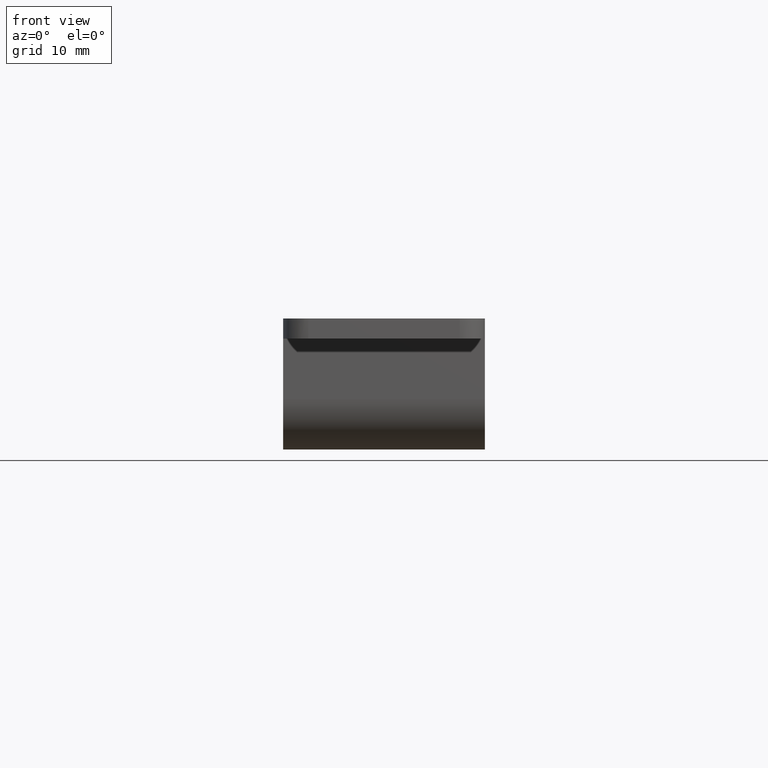
[diagram: clean part render]
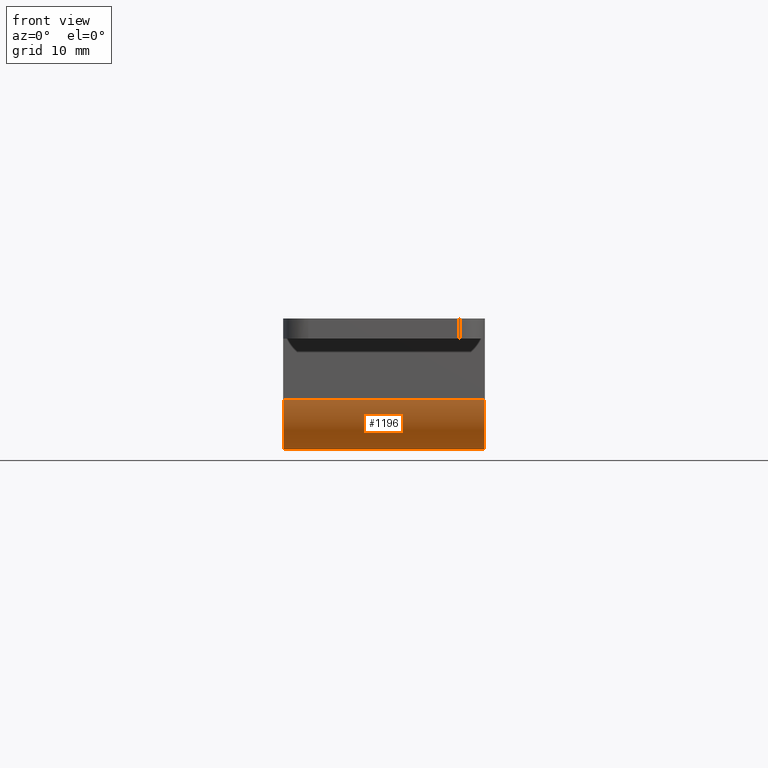
[diagram: same view with one face highlighted and labeled with its STEP entity id]
A machine part, front view. The second image highlights one B-rep face of the part: STEP entity #1196.
In plain terms, the highlighted face is a freeform B-spline surface patch.
Its self-contained STEP definition (entity closure, byte-faithful):
#838=CARTESIAN_POINT('',(9.992319250684650,67.629395641252998,-9.889255623802711));
#839=VERTEX_POINT('',#838);
#884=CARTESIAN_POINT('',(10.0,67.551831564074305,-10.069097765091801));
#885=VERTEX_POINT('',#884);
#891=CARTESIAN_POINT('',(9.992319250684650,67.629395641252998,-9.889255623802711));
#892=CARTESIAN_POINT('',(9.997441706453822,67.604753262195672,-9.949616435159280));
#893=CARTESIAN_POINT('',(10.0,67.578902152860550,-10.009565444472210));
#894=CARTESIAN_POINT('',(10.0,67.551831564074305,-10.069097765091801));
#895=QUASI_UNIFORM_CURVE('',3,(#891,#892,#893,#894),.UNSPECIFIED.,.F.,.U.);
#896=EDGE_CURVE('',#839,#885,#895,.T.);
#915=CARTESIAN_POINT('',(-10.0,67.551831564074305,-10.069097765091801));
#916=VERTEX_POINT('',#915);
#917=CARTESIAN_POINT('',(-9.992319250684780,67.629395641252998,-9.889255623802711));
#918=VERTEX_POINT('',#917);
#919=CARTESIAN_POINT('',(-10.0,67.551831564074305,-10.069097765091801));
#920=CARTESIAN_POINT('',(-10.0,67.578902152860550,-10.009565444472219));
#921=CARTESIAN_POINT('',(-9.997441706453930,67.604753262195672,-9.949616435159291));
#922=CARTESIAN_POINT('',(-9.992319250684759,67.629395641252998,-9.889255623802720));
#923=QUASI_UNIFORM_CURVE('',3,(#919,#920,#921,#922),.UNSPECIFIED.,.F.,.U.);
#924=EDGE_CURVE('',#916,#918,#923,.T.);
#1038=CARTESIAN_POINT('',(-10.0,58.000300000000003,-7.999421360134960));
#1039=VERTEX_POINT('',#1038);
#1040=CARTESIAN_POINT('',(-10.0,67.551831564074320,-10.069097765091810));
#1041=CARTESIAN_POINT('',(-10.0,65.882592664399354,-13.740006667399014));
#1042=CARTESIAN_POINT('',(-10.0,61.941446332199682,-12.886018224025600));
#1043=CARTESIAN_POINT('',(-10.0,58.000300000000003,-12.032029780652177));
#1044=CARTESIAN_POINT('',(-10.0,58.000300000000003,-7.999421360134960));
#1052=(BOUNDED_CURVE()B_SPLINE_CURVE(2,(#1040,#1041,#1042,#1043,#1044),.UNSPECIFIED.,.F.,.U.)B_SPLINE_CURVE_WITH_KNOTS((3,2,3),(0.0,0.500000000000000,1.0),.UNSPECIFIED.)CURVE()GEOMETRIC_REPRESENTATION_ITEM()RATIONAL_B_SPLINE_CURVE((1.0,0.778386386558778,1.0,0.778386386558778,1.0))REPRESENTATION_ITEM(''));
#1053=EDGE_CURVE('',#916,#1039,#1052,.T.);
#1083=CARTESIAN_POINT('',(10.0,58.000300000000003,-7.999421360134960));
#1084=VERTEX_POINT('',#1083);
#1090=CARTESIAN_POINT('',(10.0,67.551831564074320,-10.069097765091810));
#1091=CARTESIAN_POINT('',(10.0,65.882592664399354,-13.740006667399014));
#1092=CARTESIAN_POINT('',(10.0,61.941446332199682,-12.886018224025600));
#1093=CARTESIAN_POINT('',(10.0,58.000300000000003,-12.032029780652177));
#1094=CARTESIAN_POINT('',(10.0,58.000300000000003,-7.999421360134960));
#1102=(BOUNDED_CURVE()B_SPLINE_CURVE(2,(#1090,#1091,#1092,#1093,#1094),.UNSPECIFIED.,.F.,.U.)B_SPLINE_CURVE_WITH_KNOTS((3,2,3),(0.0,0.500000000000000,1.0),.UNSPECIFIED.)CURVE()GEOMETRIC_REPRESENTATION_ITEM()RATIONAL_B_SPLINE_CURVE((1.0,0.778386386558778,1.0,0.778386386558778,1.0))REPRESENTATION_ITEM(''));
#1103=EDGE_CURVE('',#885,#1084,#1102,.T.);
#1151=CARTESIAN_POINT('',(9.992319250684650,67.629395641252998,-9.889255623802711));
#1152=CARTESIAN_POINT('',(-9.992319250684780,67.629395641252998,-9.889255623802711));
#1153=QUASI_UNIFORM_CURVE('',1,(#1151,#1152),.UNSPECIFIED.,.F.,.U.);
#1154=EDGE_CURVE('',#839,#918,#1153,.T.);
#1166=CARTESIAN_POINT('',(10.500000000000000,58.002013375122210,-7.868536618595587));
#1167=CARTESIAN_POINT('',(-10.512499999999999,58.002013375122210,-7.868536618595587));
#1168=CARTESIAN_POINT('',(10.500000000000002,57.890227245351561,-12.137476685314084));
#1169=CARTESIAN_POINT('',(-10.512500000000001,57.890227245351561,-12.137476685314084));
#1170=CARTESIAN_POINT('',(10.500000000000000,62.089122372539251,-12.915695897954730));
#1171=CARTESIAN_POINT('',(-10.512499999999999,62.089122372539251,-12.915695897954730));
#1172=CARTESIAN_POINT('',(10.500000000000002,66.288017499726962,-13.693915110595375));
#1173=CARTESIAN_POINT('',(-10.512500000000001,66.288017499726962,-13.693915110595375));
#1174=CARTESIAN_POINT('',(10.500000000000000,67.713507455460899,-9.668455656303820));
#1175=CARTESIAN_POINT('',(-10.512499999999999,67.713507455460899,-9.668455656303820));
#1183=(BOUNDED_SURFACE()B_SPLINE_SURFACE(1,2,((#1166,#1168,#1170,#1172,#1174),(#1167,#1169,#1171,#1173,#1175)),.UNSPECIFIED.,.F.,.F.,.U.)B_SPLINE_SURFACE_WITH_KNOTS((2,2),(3,2,3),(0.0,21.012499999999999),(0.0,7.378389542196550,14.756779084393100),.UNSPECIFIED.)GEOMETRIC_REPRESENTATION_ITEM()RATIONAL_B_SPLINE_SURFACE(((1.0,0.760405965600031,1.0,0.760405965600031,1.0),(1.0,0.760405965600031,1.0,0.760405965600031,1.0)))REPRESENTATION_ITEM('')SURFACE());
#1184=ORIENTED_EDGE('',*,*,#1053,.F.);
#1185=ORIENTED_EDGE('',*,*,#924,.T.);
#1186=ORIENTED_EDGE('',*,*,#1154,.F.);
#1187=ORIENTED_EDGE('',*,*,#896,.T.);
#1188=ORIENTED_EDGE('',*,*,#1103,.T.);
#1189=CARTESIAN_POINT('',(10.0,58.000300000000003,-7.999421360134960));
#1190=CARTESIAN_POINT('',(-10.0,58.000300000000003,-7.999421360134960));
#1191=QUASI_UNIFORM_CURVE('',1,(#1189,#1190),.UNSPECIFIED.,.F.,.U.);
#1192=EDGE_CURVE('',#1084,#1039,#1191,.T.);
#1193=ORIENTED_EDGE('',*,*,#1192,.T.);
#1194=EDGE_LOOP('',(#1184,#1185,#1186,#1187,#1188,#1193));
#1195=FACE_OUTER_BOUND('',#1194,.T.);
#1196=ADVANCED_FACE('',(#1195),#1183,.T.);